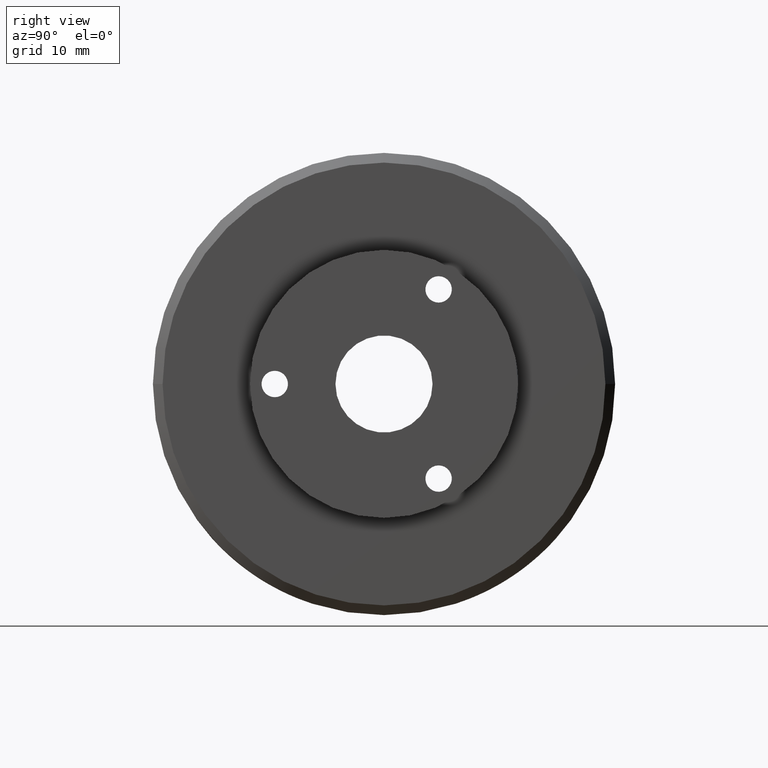
[diagram: clean part render]
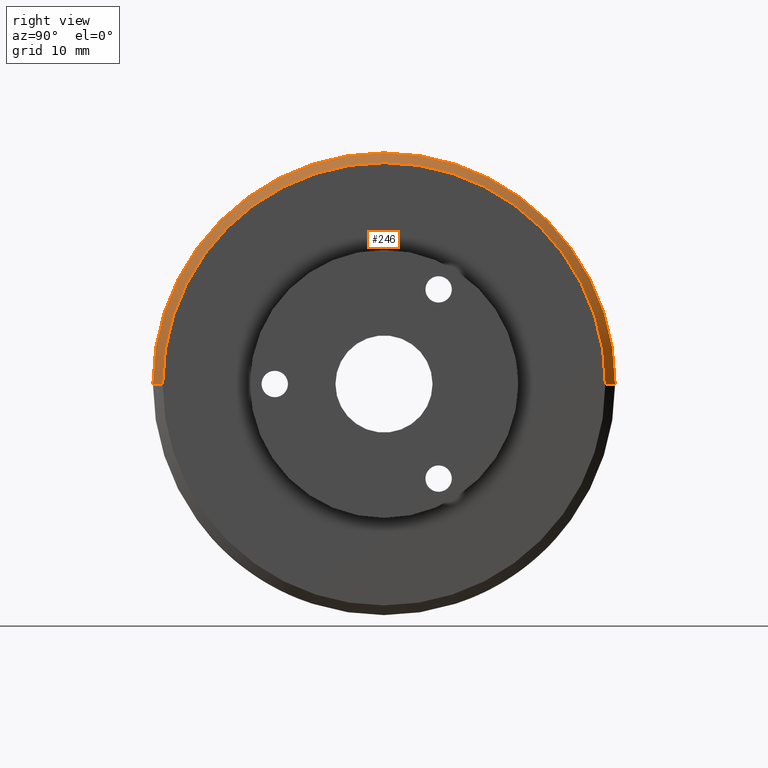
[diagram: same view with one face highlighted and labeled with its STEP entity id]
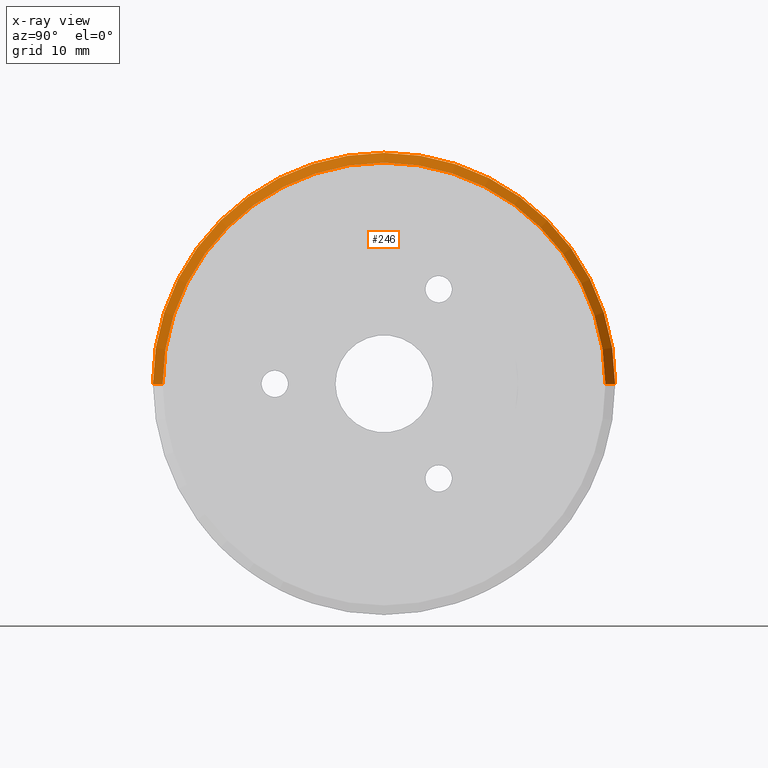
[diagram: x-ray of the same camera — body ghosted, the highlighted face saturated]
A machine part, right view. The second image highlights one B-rep face of the part: STEP entity #246.
The next image is the same camera in x-ray: the body ghosted, the highlighted face saturated — about 0% of this face is hidden behind the body in this view.
In plain terms, the highlighted conical surface has half-angle 45 deg.
Its self-contained STEP definition (entity closure, byte-faithful):
#246 = ADVANCED_FACE ( 'NONE', ( #2092 ), #2101, .T. ) ;
#472 = CARTESIAN_POINT ( 'NONE',  ( 0.4800000000000003700, 1.622657008870243500E-016, 0.0000000000000000000 ) ) ;
#473 = DIRECTION ( 'NONE',  ( -1.000000000000000000, -1.224646799147357600E-016, -0.0000000000000000000 ) ) ;
#477 = DIRECTION ( 'NONE',  ( 1.147835291455572900E-016, -1.000000000000000000, 0.0000000000000000000 ) ) ;
#860 = VERTEX_POINT ( 'NONE', #1567 ) ;
#897 = VERTEX_POINT ( 'NONE', #1590 ) ;
#905 = VERTEX_POINT ( 'NONE', #1594 ) ;
#909 = VERTEX_POINT ( 'NONE', #1597 ) ;
#1567 = CARTESIAN_POINT ( 'NONE',  ( 0.5300000000000001400, 1.140000000000000300, 1.426713521006666400E-016 ) ) ;
#1590 = CARTESIAN_POINT ( 'NONE',  ( 0.4800000000000004800, -1.189999999999999900, 0.0000000000000000000 ) ) ;
#1594 = CARTESIAN_POINT ( 'NONE',  ( 0.5300000000000003600, -1.139999999999999900, 0.0000000000000000000 ) ) ;
#1597 = CARTESIAN_POINT ( 'NONE',  ( 0.4800000000000002000, 1.190000000000000200, 1.457329690985350300E-016 ) ) ;
#1720 = EDGE_CURVE ( 'NONE', #897, #909, #2534, .T. ) ;
#1729 = EDGE_CURVE ( 'NONE', #860, #909, #2538, .T. ) ;
#1730 = EDGE_CURVE ( 'NONE', #860, #905, #2549, .T. ) ;
#1731 = EDGE_CURVE ( 'NONE', #905, #897, #2548, .T. ) ;
#1899 = AXIS2_PLACEMENT_3D ( 'NONE', #472, #473, #477 ) ;
#2092 = FACE_OUTER_BOUND ( 'NONE', #3764, .T. ) ;
#2101 = CONICAL_SURFACE ( 'NONE', #1899, 1.189999999999999900, 0.7853981633974482800 ) ;
#2371 = AXIS2_PLACEMENT_3D ( 'NONE', #3202, #3200, #3199 ) ;
#2373 = AXIS2_PLACEMENT_3D ( 'NONE', #3109, #3106, #3105 ) ;
#2534 = CIRCLE ( 'NONE', #2371, 1.189999999999999900 ) ;
#2538 = LINE ( 'NONE', #3114, #2544 ) ;
#2544 = VECTOR ( 'NONE', #3110, 39.37007874015748900 ) ;
#2545 = VECTOR ( 'NONE', #3102, 39.37007874015748900 ) ;
#2548 = LINE ( 'NONE', #3111, #2545 ) ;
#2549 = CIRCLE ( 'NONE', #2373, 1.140000000000000100 ) ;
#3102 = DIRECTION ( 'NONE',  ( -0.7071067811865473500, -0.7071067811865475700, 0.0000000000000000000 ) ) ;
#3105 = DIRECTION ( 'NONE',  ( 1.198178944589589100E-016, -1.000000000000000000, 0.0000000000000000000 ) ) ;
#3106 = DIRECTION ( 'NONE',  ( 1.000000000000000000, 1.224646799147353200E-016, 0.0000000000000000000 ) ) ;
#3109 = CARTESIAN_POINT ( 'NONE',  ( 0.5300000000000002500, 1.683889348827611000E-016, 0.0000000000000000000 ) ) ;
#3110 = DIRECTION ( 'NONE',  ( -0.7071067811865475700, 0.7071067811865473500, 8.659560562354932900E-017 ) ) ;
#3111 = CARTESIAN_POINT ( 'NONE',  ( 0.4800000000000004800, -1.189999999999999900, 0.0000000000000000000 ) ) ;
#3114 = CARTESIAN_POINT ( 'NONE',  ( 0.4800000000000002000, 1.190000000000000200, 1.457329690985350300E-016 ) ) ;
#3199 = DIRECTION ( 'NONE',  ( 1.147835291455572900E-016, -1.000000000000000000, 0.0000000000000000000 ) ) ;
#3200 = DIRECTION ( 'NONE',  ( -1.000000000000000000, -1.224646799147357600E-016, -0.0000000000000000000 ) ) ;
#3202 = CARTESIAN_POINT ( 'NONE',  ( 0.4800000000000003700, 1.622657008870243500E-016, 0.0000000000000000000 ) ) ;
#3681 = ORIENTED_EDGE ( 'NONE', *, *, #1731, .F. ) ;
#3682 = ORIENTED_EDGE ( 'NONE', *, *, #1720, .F. ) ;
#3683 = ORIENTED_EDGE ( 'NONE', *, *, #1729, .T. ) ;
#3684 = ORIENTED_EDGE ( 'NONE', *, *, #1730, .F. ) ;
#3764 = EDGE_LOOP ( 'NONE', ( #3684, #3683, #3682, #3681 ) ) ;